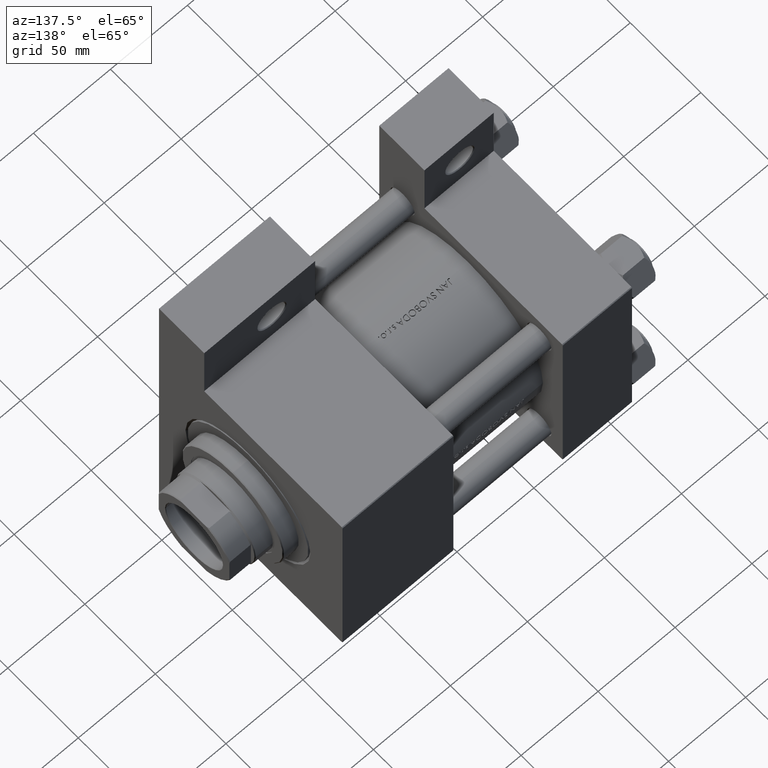
[diagram: clean part render]
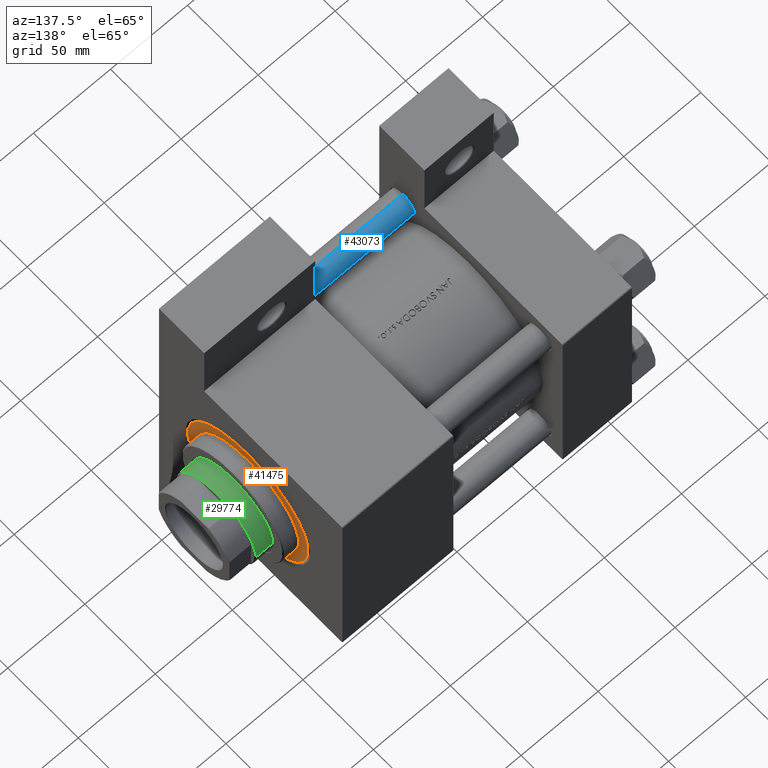
[diagram: same view with three faces highlighted in distinct colors, each labeled with its STEP entity id]
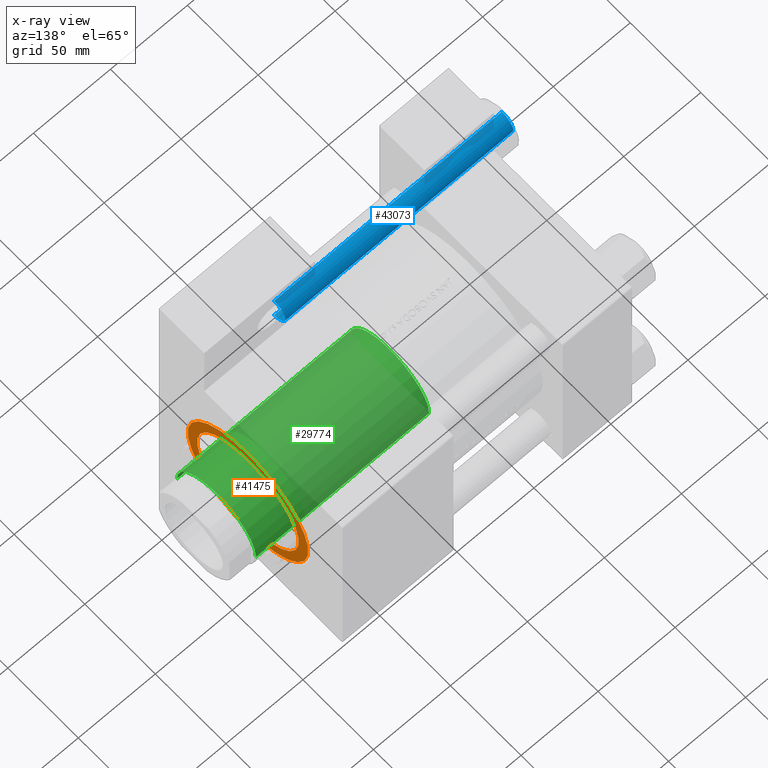
[diagram: x-ray of the same camera — body ghosted, the three highlighted faces saturated]
A machine part, auxiliary view with three faces highlighted in distinct colors.
The next image is the same camera in x-ray (body ghosted, the three faces saturated) — at least one of them is partly hidden behind the body in this view.
Their STEP definitions:

[orange] entity #41475 — the highlighted planar face has unit normal (1, 0, 0).
#862 = ORIENTED_EDGE ( 'NONE', *, *, #44708, .F. ) ;
#3842 = ORIENTED_EDGE ( 'NONE', *, *, #33148, .F. ) ;
#5589 = CARTESIAN_POINT ( 'NONE',  ( -36.00000000000000000, 0.000000000000000000, 28.69999999999999929 ) ) ;
#5957 = DIRECTION ( 'NONE',  ( 0.000000000000000000, 0.000000000000000000, 1.000000000000000000 ) ) ;
#7344 = DIRECTION ( 'NONE',  ( 1.000000000000000000, 0.000000000000000000, 0.000000000000000000 ) ) ;
#9269 = EDGE_LOOP ( 'NONE', ( #3842, #862 ) ) ;
#11946 = ORIENTED_EDGE ( 'NONE', *, *, #29881, .T. ) ;
#12139 = AXIS2_PLACEMENT_3D ( 'NONE', #29911, #39931, #7344 ) ;
#14183 = DIRECTION ( 'NONE',  ( 1.000000000000000000, 0.000000000000000000, -0.000000000000000000 ) ) ;
#14467 = DIRECTION ( 'NONE',  ( 0.000000000000000000, 0.000000000000000000, 1.000000000000000000 ) ) ;
#14841 = VERTEX_POINT ( 'NONE', #22663 ) ;
#16714 = VERTEX_POINT ( 'NONE', #5589 ) ;
#17088 = CARTESIAN_POINT ( 'NONE',  ( 0.000000000000000000, 0.000000000000000000, 28.69999999999999929 ) ) ;
#17409 = CARTESIAN_POINT ( 'NONE',  ( 36.00000000000000000, 4.408728476930470856E-15, 28.69999999999999929 ) ) ;
#17596 = CARTESIAN_POINT ( 'NONE',  ( 0.000000000000000000, 0.000000000000000000, 28.69999999999999929 ) ) ;
#18044 = VERTEX_POINT ( 'NONE', #17409 ) ;
#19047 = DIRECTION ( 'NONE',  ( 1.000000000000000000, 0.000000000000000000, 0.000000000000000000 ) ) ;
#19284 = DIRECTION ( 'NONE',  ( 0.000000000000000000, 0.000000000000000000, 1.000000000000000000 ) ) ;
#19838 = CIRCLE ( 'NONE', #26795, 42.75000000000000000 ) ;
#20502 = DIRECTION ( 'NONE',  ( 1.000000000000000000, 0.000000000000000000, 0.000000000000000000 ) ) ;
#22489 = CARTESIAN_POINT ( 'NONE',  ( 0.000000000000000000, 0.000000000000000000, 28.69999999999999929 ) ) ;
#22663 = CARTESIAN_POINT ( 'NONE',  ( -42.75000000000000000, 0.000000000000000000, 28.69999999999999929 ) ) ;
#24417 = FACE_BOUND ( 'NONE', #9269, .T. ) ;
#26795 = AXIS2_PLACEMENT_3D ( 'NONE', #22489, #14467, #47568 ) ;
#28173 = CIRCLE ( 'NONE', #35892, 42.75000000000000000 ) ;
#29771 = EDGE_LOOP ( 'NONE', ( #38914, #11946 ) ) ;
#29881 = EDGE_CURVE ( 'NONE', #37986, #14841, #28173, .T. ) ;
#29911 = CARTESIAN_POINT ( 'NONE',  ( 0.000000000000000000, 0.000000000000000000, 28.69999999999999929 ) ) ;
#32871 = FACE_OUTER_BOUND ( 'NONE', #29771, .T. ) ;
#32882 = CIRCLE ( 'NONE', #45335, 36.00000000000000000 ) ;
#33148 = EDGE_CURVE ( 'NONE', #16714, #18044, #32882, .T. ) ;
#34583 = CARTESIAN_POINT ( 'NONE',  ( 0.000000000000000000, 0.000000000000000000, 28.69999999999999929 ) ) ;
#35823 = PLANE ( 'NONE',  #40795 ) ;
#35892 = AXIS2_PLACEMENT_3D ( 'NONE', #17088, #36256, #20502 ) ;
#36194 = EDGE_CURVE ( 'NONE', #14841, #37986, #19838, .T. ) ;
#36256 = DIRECTION ( 'NONE',  ( 0.000000000000000000, 0.000000000000000000, 1.000000000000000000 ) ) ;
#37778 = CARTESIAN_POINT ( 'NONE',  ( 42.75000000000000000, 5.235365066354935472E-15, 28.69999999999999929 ) ) ;
#37986 = VERTEX_POINT ( 'NONE', #37778 ) ;
#38914 = ORIENTED_EDGE ( 'NONE', *, *, #36194, .T. ) ;
#39931 = DIRECTION ( 'NONE',  ( 0.000000000000000000, 0.000000000000000000, 1.000000000000000000 ) ) ;
#40795 = AXIS2_PLACEMENT_3D ( 'NONE', #17596, #5957, #14183 ) ;
#41475 = ADVANCED_FACE ( 'NONE', ( #24417, #32871 ), #35823, .T. ) ;
#44708 = EDGE_CURVE ( 'NONE', #18044, #16714, #46338, .T. ) ;
#45335 = AXIS2_PLACEMENT_3D ( 'NONE', #34583, #19284, #19047 ) ;
#46338 = CIRCLE ( 'NONE', #12139, 36.00000000000000000 ) ;
#47568 = DIRECTION ( 'NONE',  ( 1.000000000000000000, 0.000000000000000000, 0.000000000000000000 ) ) ;

[blue] entity #43073 — the highlighted cylindrical surface (edge-blend (fillet) strip) has radius 8 mm, axis along (1, 0, 0).
#181 = LINE ( 'NONE', #29095, #20371 ) ;
#1436 = EDGE_CURVE ( 'NONE', #11764, #44379, #43366, .T. ) ;
#3114 = CIRCLE ( 'NONE', #8542, 8.000000000000000000 ) ;
#5369 = CYLINDRICAL_SURFACE ( 'NONE', #46320, 8.000000000000000000 ) ;
#7147 = ORIENTED_EDGE ( 'NONE', *, *, #28519, .T. ) ;
#7716 = CARTESIAN_POINT ( 'NONE',  ( -8.000000000000000000, 0.000000000000000000, 149.0000000000000000 ) ) ;
#8542 = AXIS2_PLACEMENT_3D ( 'NONE', #12099, #23025, #34201 ) ;
#8592 = VERTEX_POINT ( 'NONE', #15590 ) ;
#9021 = DIRECTION ( 'NONE',  ( -1.000000000000000000, 0.000000000000000000, 0.000000000000000000 ) ) ;
#9260 = DIRECTION ( 'NONE',  ( -0.000000000000000000, -0.000000000000000000, -1.000000000000000000 ) ) ;
#11351 = DIRECTION ( 'NONE',  ( -0.000000000000000000, -0.000000000000000000, -1.000000000000000000 ) ) ;
#11764 = VERTEX_POINT ( 'NONE', #30500 ) ;
#12099 = CARTESIAN_POINT ( 'NONE',  ( 0.000000000000000000, 0.000000000000000000, 0.5000000000000281997 ) ) ;
#13413 = EDGE_CURVE ( 'NONE', #11764, #8592, #181, .T. ) ;
#15590 = CARTESIAN_POINT ( 'NONE',  ( 8.000000000000000000, 9.797174393178825657E-16, 0.5000000000000281997 ) ) ;
#16047 = CARTESIAN_POINT ( 'NONE',  ( 0.000000000000000000, 0.000000000000000000, 149.0000000000000000 ) ) ;
#18769 = EDGE_CURVE ( 'NONE', #23008, #8592, #3114, .T. ) ;
#20371 = VECTOR ( 'NONE', #21580, 1000.000000000000000 ) ;
#21580 = DIRECTION ( 'NONE',  ( -0.000000000000000000, -0.000000000000000000, -1.000000000000000000 ) ) ;
#23008 = VERTEX_POINT ( 'NONE', #23796 ) ;
#23025 = DIRECTION ( 'NONE',  ( -0.000000000000000000, -0.000000000000000000, 1.000000000000000000 ) ) ;
#23796 = CARTESIAN_POINT ( 'NONE',  ( -8.000000000000000000, 0.000000000000000000, 0.5000000000000281997 ) ) ;
#24348 = ORIENTED_EDGE ( 'NONE', *, *, #13413, .F. ) ;
#24599 = ORIENTED_EDGE ( 'NONE', *, *, #18769, .T. ) ;
#24738 = AXIS2_PLACEMENT_3D ( 'NONE', #37266, #30208, #30461 ) ;
#26748 = FACE_OUTER_BOUND ( 'NONE', #45046, .T. ) ;
#28519 = EDGE_CURVE ( 'NONE', #44379, #23008, #41486, .T. ) ;
#29095 = CARTESIAN_POINT ( 'NONE',  ( 8.000000000000000000, 9.797174393178825657E-16, 149.0000000000000000 ) ) ;
#29489 = CARTESIAN_POINT ( 'NONE',  ( -8.000000000000000000, 0.000000000000000000, 148.5000000000000000 ) ) ;
#29616 = VECTOR ( 'NONE', #11351, 1000.000000000000000 ) ;
#30208 = DIRECTION ( 'NONE',  ( 0.000000000000000000, 0.000000000000000000, -1.000000000000000000 ) ) ;
#30461 = DIRECTION ( 'NONE',  ( 1.000000000000000000, 0.000000000000000000, 0.000000000000000000 ) ) ;
#30500 = CARTESIAN_POINT ( 'NONE',  ( 8.000000000000000000, 9.797174393178825657E-16, 148.5000000000000000 ) ) ;
#34201 = DIRECTION ( 'NONE',  ( 1.000000000000000000, 0.000000000000000000, 0.000000000000000000 ) ) ;
#37266 = CARTESIAN_POINT ( 'NONE',  ( 0.000000000000000000, 0.000000000000000000, 148.5000000000000000 ) ) ;
#41065 = ORIENTED_EDGE ( 'NONE', *, *, #1436, .T. ) ;
#41486 = LINE ( 'NONE', #7716, #29616 ) ;
#43073 = ADVANCED_FACE ( 'NONE', ( #26748 ), #5369, .T. ) ;
#43366 = CIRCLE ( 'NONE', #24738, 8.000000000000000000 ) ;
#44379 = VERTEX_POINT ( 'NONE', #29489 ) ;
#45046 = EDGE_LOOP ( 'NONE', ( #24348, #41065, #7147, #24599 ) ) ;
#46320 = AXIS2_PLACEMENT_3D ( 'NONE', #16047, #9260, #9021 ) ;

[green] entity #29774 — the highlighted cylindrical surface (partial cylindrical patch) has radius 28 mm, axis along (-1, 0, 0).
#88 = EDGE_CURVE ( 'NONE', #30276, #27994, #28150, .T. ) ;
#457 = ORIENTED_EDGE ( 'NONE', *, *, #2944, .T. ) ;
#2944 = EDGE_CURVE ( 'NONE', #27994, #41115, #34123, .T. ) ;
#4712 = DIRECTION ( 'NONE',  ( -0.000000000000000000, -0.000000000000000000, -1.000000000000000000 ) ) ;
#5217 = EDGE_CURVE ( 'NONE', #43742, #41115, #13056, .T. ) ;
#9658 = DIRECTION ( 'NONE',  ( -0.000000000000000000, -0.000000000000000000, -1.000000000000000000 ) ) ;
#11439 = CARTESIAN_POINT ( 'NONE',  ( 0.000000000000000000, 0.000000000000000000, 51.00000000000000000 ) ) ;
#12973 = DIRECTION ( 'NONE',  ( -1.000000000000000000, 0.000000000000000000, 0.000000000000000000 ) ) ;
#13056 = LINE ( 'NONE', #19868, #32508 ) ;
#14360 = DIRECTION ( 'NONE',  ( 1.000000000000000000, 0.000000000000000000, 0.000000000000000000 ) ) ;
#15628 = CIRCLE ( 'NONE', #37334, 28.00000000000000000 ) ;
#16374 = FACE_OUTER_BOUND ( 'NONE', #43236, .T. ) ;
#16492 = DIRECTION ( 'NONE',  ( -0.000000000000000000, -0.000000000000000000, -1.000000000000000000 ) ) ;
#17894 = CARTESIAN_POINT ( 'NONE',  ( 28.00000000000000000, 3.429011037612589276E-15, 51.00000000000000000 ) ) ;
#19868 = CARTESIAN_POINT ( 'NONE',  ( 28.00000000000000000, 3.429011037612589276E-15, 164.0000000000000000 ) ) ;
#22532 = EDGE_CURVE ( 'NONE', #43742, #30276, #15628, .T. ) ;
#22818 = CARTESIAN_POINT ( 'NONE',  ( 28.00000000000000000, 3.429011037612589276E-15, 163.5000000000000000 ) ) ;
#23174 = CYLINDRICAL_SURFACE ( 'NONE', #30466, 28.00000000000000000 ) ;
#26211 = CARTESIAN_POINT ( 'NONE',  ( -28.00000000000000000, 0.000000000000000000, 163.5000000000000000 ) ) ;
#27994 = VERTEX_POINT ( 'NONE', #28341 ) ;
#28150 = LINE ( 'NONE', #42975, #33201 ) ;
#28341 = CARTESIAN_POINT ( 'NONE',  ( -28.00000000000000000, 0.000000000000000000, 51.00000000000000000 ) ) ;
#28676 = AXIS2_PLACEMENT_3D ( 'NONE', #11439, #33542, #14360 ) ;
#29774 = ADVANCED_FACE ( 'NONE', ( #16374 ), #23174, .T. ) ;
#29839 = ORIENTED_EDGE ( 'NONE', *, *, #22532, .T. ) ;
#30276 = VERTEX_POINT ( 'NONE', #26211 ) ;
#30466 = AXIS2_PLACEMENT_3D ( 'NONE', #45543, #4712, #12973 ) ;
#31482 = DIRECTION ( 'NONE',  ( 0.000000000000000000, 0.000000000000000000, -1.000000000000000000 ) ) ;
#32508 = VECTOR ( 'NONE', #9658, 1000.000000000000000 ) ;
#33201 = VECTOR ( 'NONE', #16492, 1000.000000000000000 ) ;
#33542 = DIRECTION ( 'NONE',  ( 0.000000000000000000, 0.000000000000000000, 1.000000000000000000 ) ) ;
#34123 = CIRCLE ( 'NONE', #28676, 28.00000000000000000 ) ;
#37229 = ORIENTED_EDGE ( 'NONE', *, *, #88, .T. ) ;
#37334 = AXIS2_PLACEMENT_3D ( 'NONE', #42921, #31482, #45605 ) ;
#41115 = VERTEX_POINT ( 'NONE', #17894 ) ;
#42921 = CARTESIAN_POINT ( 'NONE',  ( 0.000000000000000000, 0.000000000000000000, 163.5000000000000000 ) ) ;
#42975 = CARTESIAN_POINT ( 'NONE',  ( -28.00000000000000000, 0.000000000000000000, 164.0000000000000000 ) ) ;
#43236 = EDGE_LOOP ( 'NONE', ( #44564, #29839, #37229, #457 ) ) ;
#43742 = VERTEX_POINT ( 'NONE', #22818 ) ;
#44564 = ORIENTED_EDGE ( 'NONE', *, *, #5217, .F. ) ;
#45543 = CARTESIAN_POINT ( 'NONE',  ( 0.000000000000000000, 0.000000000000000000, 164.0000000000000000 ) ) ;
#45605 = DIRECTION ( 'NONE',  ( 1.000000000000000000, 0.000000000000000000, 0.000000000000000000 ) ) ;